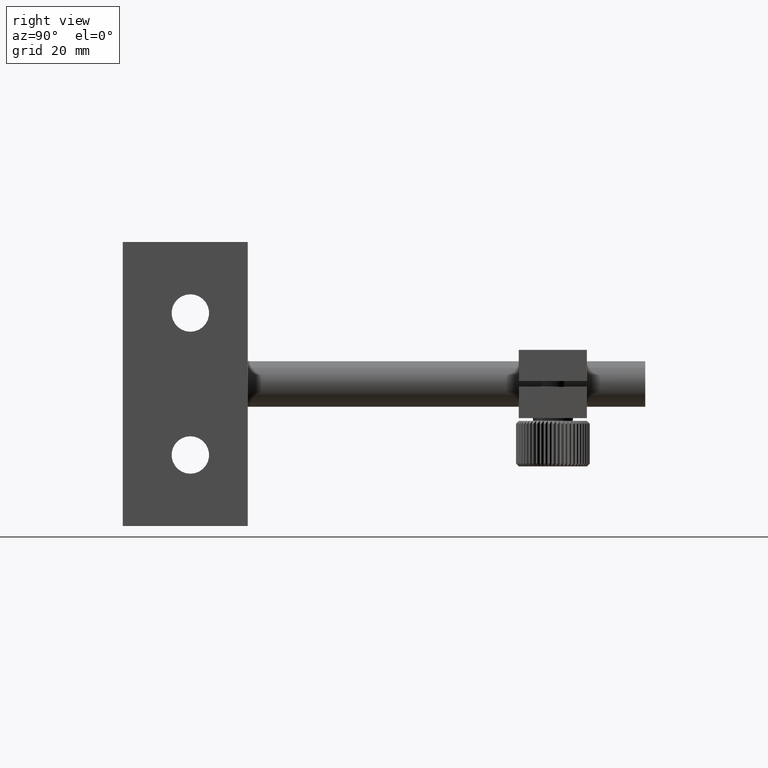
[diagram: clean part render]
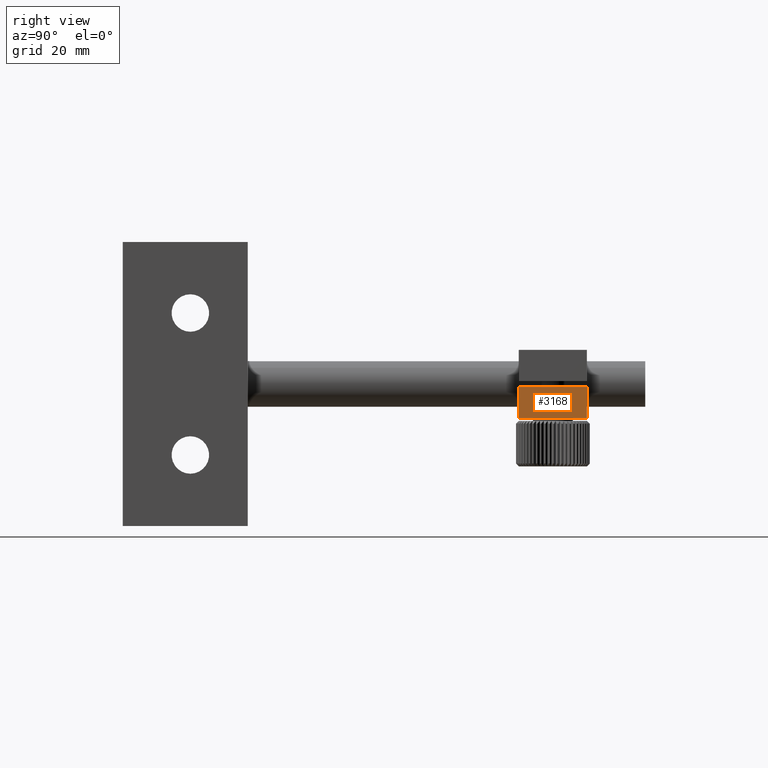
[diagram: same view with one face highlighted and labeled with its STEP entity id]
A machine part, right view. The second image highlights one B-rep face of the part: STEP entity #3168.
In plain terms, the highlighted planar face has unit normal (-1, 0, 0).
Its self-contained STEP definition (entity closure, byte-faithful):
#359 = VERTEX_POINT ( 'NONE', #13477 ) ;
#460 = AXIS2_PLACEMENT_3D ( 'NONE', #3923, #12304, #8030 ) ;
#1122 = EDGE_CURVE ( 'NONE', #12049, #13142, #2531, .T. ) ;
#1334 = VERTEX_POINT ( 'NONE', #10500 ) ;
#2115 = CARTESIAN_POINT ( 'NONE',  ( 31.28603302097275600, 75.14249319889783900, -5.999999999999996400 ) ) ;
#2321 = EDGE_LOOP ( 'NONE', ( #4870, #3109, #10103, #9381 ) ) ;
#2531 = LINE ( 'NONE', #4326, #9901 ) ;
#2765 = PLANE ( 'NONE',  #460 ) ;
#3109 = ORIENTED_EDGE ( 'NONE', *, *, #1122, .F. ) ;
#3168 = ADVANCED_FACE ( 'NONE', ( #13350 ), #2765, .F. ) ;
#3923 = CARTESIAN_POINT ( 'NONE',  ( 31.28603302097275600, 75.14249319889783900, 6.000000000000003600 ) ) ;
#4073 = LINE ( 'NONE', #2115, #8449 ) ;
#4277 = DIRECTION ( 'NONE',  ( -0.0000000000000000000, 1.000000000000000000, -0.0000000000000000000 ) ) ;
#4326 = CARTESIAN_POINT ( 'NONE',  ( 31.28603302097275600, 63.14249319889783900, -0.4999999999999970000 ) ) ;
#4870 = ORIENTED_EDGE ( 'NONE', *, *, #7457, .F. ) ;
#5213 = CARTESIAN_POINT ( 'NONE',  ( 31.28603302097275600, 75.14249319889783900, 6.000000000000003600 ) ) ;
#5216 = VECTOR ( 'NONE', #8434, 1000.000000000000000 ) ;
#5426 = CARTESIAN_POINT ( 'NONE',  ( 31.28603302097275600, 63.14249319889783900, 6.000000000000003600 ) ) ;
#5800 = CARTESIAN_POINT ( 'NONE',  ( 31.28603302097275600, 63.14249319889783900, -0.4999999999999970000 ) ) ;
#6639 = EDGE_CURVE ( 'NONE', #359, #1334, #4073, .T. ) ;
#7457 = EDGE_CURVE ( 'NONE', #13142, #1334, #12434, .T. ) ;
#7490 = VECTOR ( 'NONE', #11929, 1000.000000000000000 ) ;
#8030 = DIRECTION ( 'NONE',  ( 0.0000000000000000000, 0.0000000000000000000, 1.000000000000000000 ) ) ;
#8434 = DIRECTION ( 'NONE',  ( -0.0000000000000000000, -0.0000000000000000000, -1.000000000000000000 ) ) ;
#8449 = VECTOR ( 'NONE', #4277, 1000.000000000000000 ) ;
#9381 = ORIENTED_EDGE ( 'NONE', *, *, #6639, .T. ) ;
#9901 = VECTOR ( 'NONE', #11818, 1000.000000000000000 ) ;
#10103 = ORIENTED_EDGE ( 'NONE', *, *, #10369, .T. ) ;
#10369 = EDGE_CURVE ( 'NONE', #12049, #359, #13007, .T. ) ;
#10500 = CARTESIAN_POINT ( 'NONE',  ( 31.28603302097275600, 75.14249319889783900, -5.999999999999996400 ) ) ;
#11818 = DIRECTION ( 'NONE',  ( -0.0000000000000000000, 1.000000000000000000, -0.0000000000000000000 ) ) ;
#11929 = DIRECTION ( 'NONE',  ( -0.0000000000000000000, -0.0000000000000000000, -1.000000000000000000 ) ) ;
#12049 = VERTEX_POINT ( 'NONE', #5800 ) ;
#12304 = DIRECTION ( 'NONE',  ( -1.000000000000000000, 0.0000000000000000000, 0.0000000000000000000 ) ) ;
#12434 = LINE ( 'NONE', #5213, #5216 ) ;
#13007 = LINE ( 'NONE', #5426, #7490 ) ;
#13142 = VERTEX_POINT ( 'NONE', #13349 ) ;
#13349 = CARTESIAN_POINT ( 'NONE',  ( 31.28603302097275600, 75.14249319889783900, -0.4999999999999970000 ) ) ;
#13350 = FACE_OUTER_BOUND ( 'NONE', #2321, .T. ) ;
#13477 = CARTESIAN_POINT ( 'NONE',  ( 31.28603302097275600, 63.14249319889783900, -5.999999999999996400 ) ) ;